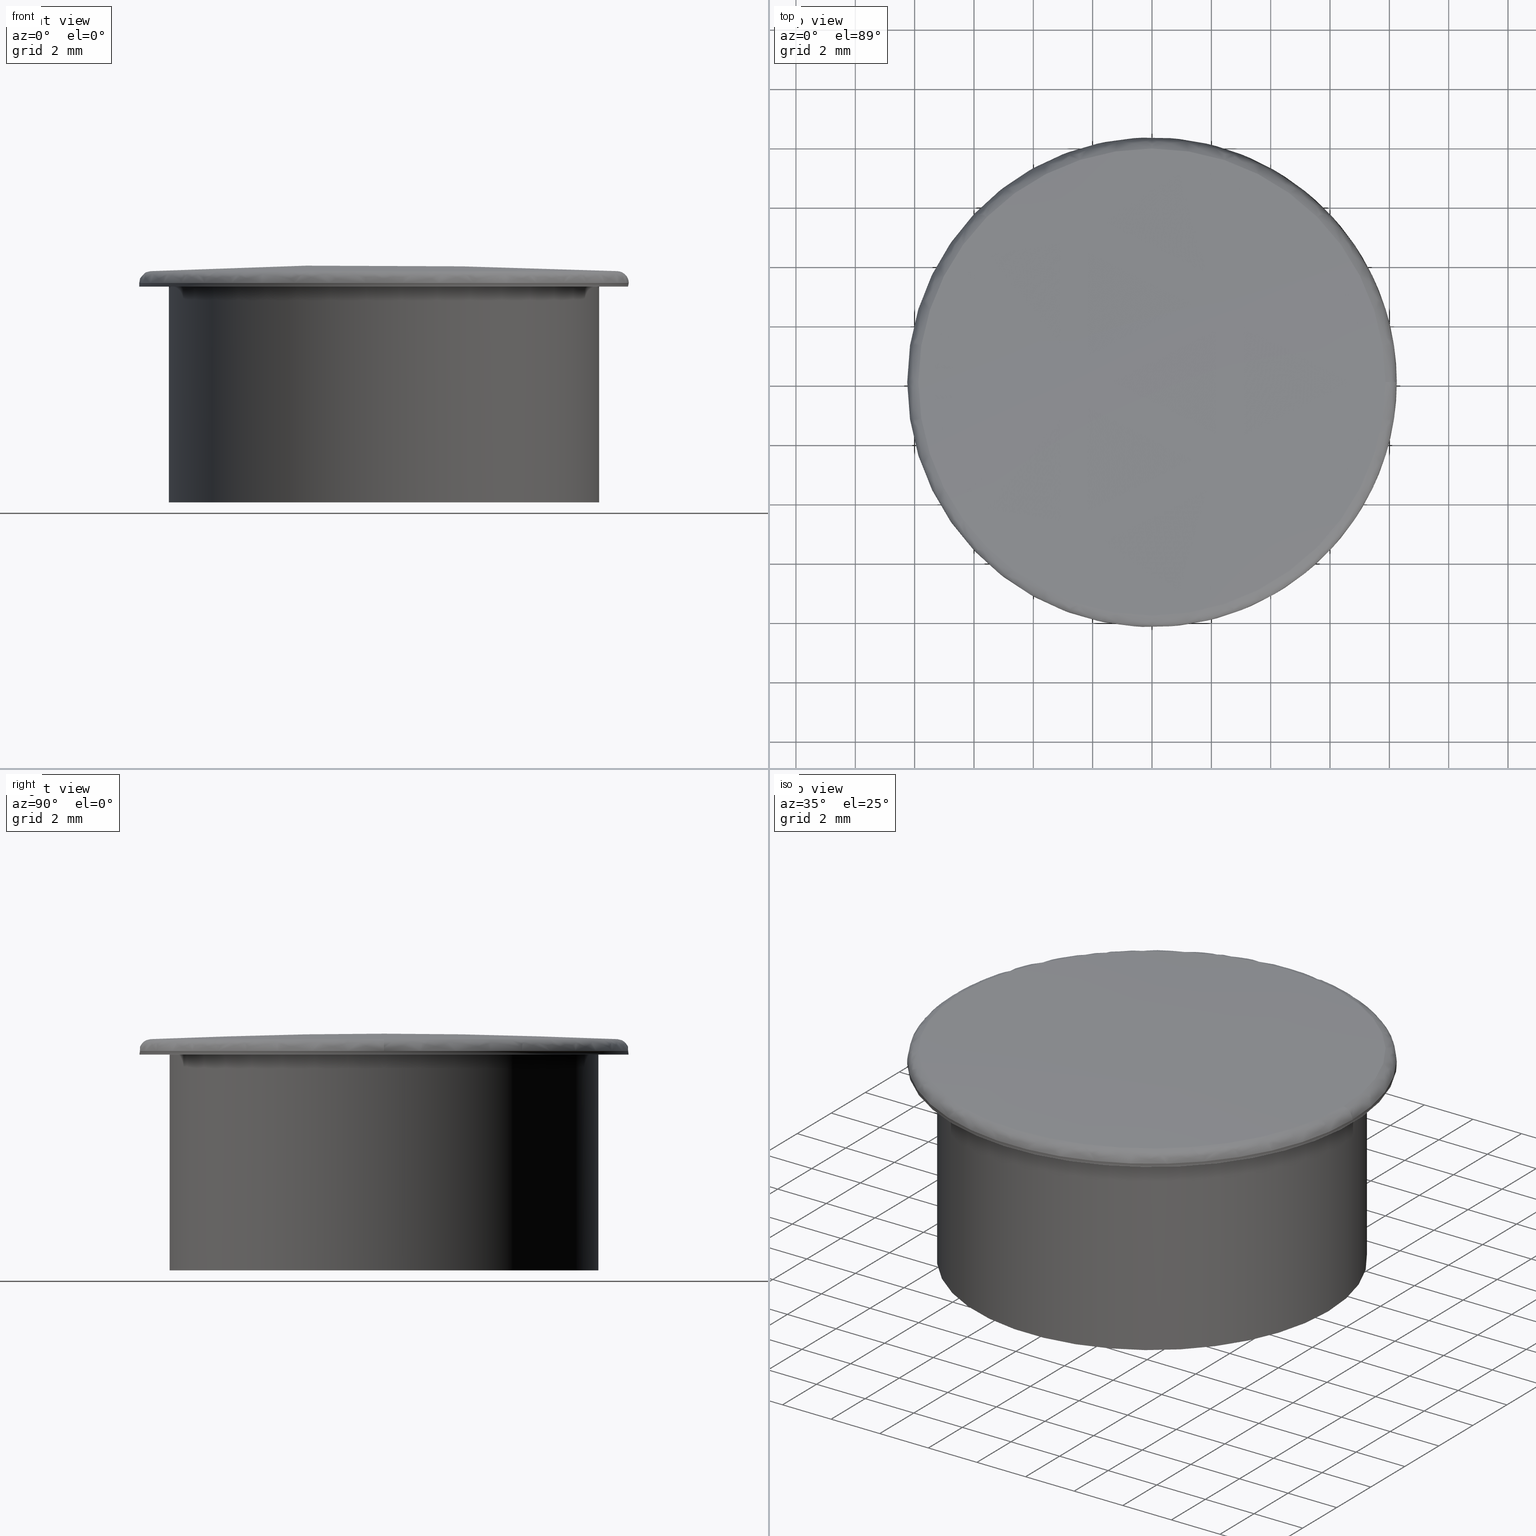
[diagram: canonical four-view strip — front | top / right | iso, engineering-drawing reading convention]
A machine part, canonical four-view strip (front | top / right | iso — engineering-drawing reading convention). The complete STEP part file that produces these views, byte-faithful:
ISO-10303-21;
HEADER;
/* Generated by software containing ST-Developer
 * from STEP Tools, Inc. (www.steptools.com) 
 */

FILE_DESCRIPTION(
/* description */ ('TAPPO COPRIFORO D13,5 GRIGIO'),
/* implementation_level */ '2;1');

FILE_NAME(
/* name */ 
'Q:\\Catalogo\\2_Accessori Dierre\\Per Download Web e catalogo cartace
o\\CATALOGO TAPPI DI CHIUSURA\\PAGINA 88\\CTPTF0000008.stp',
/* time_stamp */ '2018-10-29T09:52:59+01:00',
/* author */ ('fzagni'),
/* organization */ (''),
/* preprocessor_version */ 'ST-DEVELOPER v16.1',
/* originating_system */ 'Autodesk Inventor 2016',
/* authorisation */ '');

FILE_SCHEMA (('AUTOMOTIVE_DESIGN { 1 0 10303 214 3 1 1 }'));
ENDSEC;

DATA;
#10=MECHANICAL_DESIGN_GEOMETRIC_PRESENTATION_REPRESENTATION('',(#13),#422);
#11=SHAPE_REPRESENTATION_RELATIONSHIP('SRR','None',#431,#12);
#12=ADVANCED_BREP_SHAPE_REPRESENTATION('',(#14),#421);
#13=STYLED_ITEM('',(#440),#14);
#14=MANIFOLD_SOLID_BREP('None',#106);
#15=B_SPLINE_SURFACE_WITH_KNOTS('',3,3,((#187,#188,#189,#190,#191,#192,
#193,#194,#195,#196,#197,#198,#199,#200,#201,#202,#203,#204,#205,#206,#207,
#208,#209,#210,#211,#212,#213,#214,#215,#216,#217,#218,#219),(#220,#221,
#222,#223,#224,#225,#226,#227,#228,#229,#230,#231,#232,#233,#234,#235,#236,
#237,#238,#239,#240,#241,#242,#243,#244,#245,#246,#247,#248,#249,#250,#251,
#252),(#253,#254,#255,#256,#257,#258,#259,#260,#261,#262,#263,#264,#265,
#266,#267,#268,#269,#270,#271,#272,#273,#274,#275,#276,#277,#278,#279,#280,
#281,#282,#283,#284,#285),(#286,#287,#288,#289,#290,#291,#292,#293,#294,
#295,#296,#297,#298,#299,#300,#301,#302,#303,#304,#305,#306,#307,#308,#309,
#310,#311,#312,#313,#314,#315,#316,#317,#318),(#319,#320,#321,#322,#323,
#324,#325,#326,#327,#328,#329,#330,#331,#332,#333,#334,#335,#336,#337,#338,
#339,#340,#341,#342,#343,#344,#345,#346,#347,#348,#349,#350,#351),(#352,
#353,#354,#355,#356,#357,#358,#359,#360,#361,#362,#363,#364,#365,#366,#367,
#368,#369,#370,#371,#372,#373,#374,#375,#376,#377,#378,#379,#380,#381,#382,
#383,#384),(#385,#386,#387,#388,#389,#390,#391,#392,#393,#394,#395,#396,
#397,#398,#399,#400,#401,#402,#403,#404,#405,#406,#407,#408,#409,#410,#411,
#412,#413,#414,#415,#416,#417)),.UNSPECIFIED.,.F.,.T.,.F.,(4,1,1,1,4),(4,
1,1,1,1,1,1,1,1,1,1,1,1,1,1,1,1,1,1,1,1,1,1,1,1,1,1,1,1,1,4),(-0.0188840619126992,
0.150904810656852,0.301809621313704,0.452714431970556,0.60361924262741),
(0.,1.58789021152844,3.17578042305687,4.76367063458531,6.35156084611375,
7.93945105764218,9.52734126917062,11.1152314806991,12.7031216922275,14.2910119037559,
15.8789021152844,17.4667923268128,19.0546825383412,20.6425727498697,22.2304629613981,
25.3909511336889,28.5514393059796,30.1393295175081,31.7272197290365,33.315109940565,
34.9030001520934,36.4908903636218,38.0787805751503,39.6666707866787,41.2545609982071,
42.8424512097356,44.430341421264,46.0182316327925,47.6061218443209,49.1940120558493,
50.7819022673778),.UNSPECIFIED.);
#16=SPHERICAL_SURFACE('',#121,149.558881525479);
#17=FACE_BOUND('',#35,.T.);
#18=FACE_BOUND('',#37,.T.);
#19=FACE_BOUND('',#39,.T.);
#20=FACE_BOUND('',#41,.T.);
#21=FACE_BOUND('',#43,.T.);
#22=CYLINDRICAL_SURFACE('',#110,6.75000000000001);
#23=CYLINDRICAL_SURFACE('',#114,7.25000000000001);
#24=CYLINDRICAL_SURFACE('',#118,8.25000000000001);
#25=FACE_OUTER_BOUND('',#33,.T.);
#26=FACE_OUTER_BOUND('',#34,.T.);
#27=FACE_OUTER_BOUND('',#36,.T.);
#28=FACE_OUTER_BOUND('',#38,.T.);
#29=FACE_OUTER_BOUND('',#40,.T.);
#30=FACE_OUTER_BOUND('',#42,.T.);
#31=FACE_OUTER_BOUND('',#44,.T.);
#32=FACE_OUTER_BOUND('',#45,.T.);
#33=EDGE_LOOP('',(#75));
#34=EDGE_LOOP('',(#76));
#35=EDGE_LOOP('',(#77));
#36=EDGE_LOOP('',(#78));
#37=EDGE_LOOP('',(#79));
#38=EDGE_LOOP('',(#80));
#39=EDGE_LOOP('',(#81));
#40=EDGE_LOOP('',(#82));
#41=EDGE_LOOP('',(#83));
#42=EDGE_LOOP('',(#84,#85));
#43=EDGE_LOOP('',(#86));
#44=EDGE_LOOP('',(#87,#88));
#45=EDGE_LOOP('',(#89,#90,#91,#92,#93,#94));
#46=CIRCLE('',#109,6.75000000000001);
#47=CIRCLE('',#111,6.75000000000001);
#48=CIRCLE('',#113,7.25000000000001);
#49=CIRCLE('',#115,7.25000000000001);
#50=CIRCLE('',#117,8.25000000000001);
#51=CIRCLE('',#119,8.25000000000001);
#52=CIRCLE('',#120,8.25000000000001);
#53=CIRCLE('',#122,7.87105137235787);
#54=CIRCLE('',#123,7.87105137235787);
#55=CIRCLE('',#124,0.400000005960451);
#56=VERTEX_POINT('',#163);
#57=VERTEX_POINT('',#166);
#58=VERTEX_POINT('',#169);
#59=VERTEX_POINT('',#172);
#60=VERTEX_POINT('',#175);
#61=VERTEX_POINT('',#178);
#62=VERTEX_POINT('',#179);
#63=VERTEX_POINT('',#183);
#64=VERTEX_POINT('',#184);
#65=EDGE_CURVE('',#56,#56,#46,.T.);
#66=EDGE_CURVE('',#57,#57,#47,.T.);
#67=EDGE_CURVE('',#58,#58,#48,.T.);
#68=EDGE_CURVE('',#59,#59,#49,.T.);
#69=EDGE_CURVE('',#60,#60,#50,.T.);
#70=EDGE_CURVE('',#61,#62,#51,.T.);
#71=EDGE_CURVE('',#62,#61,#52,.T.);
#72=EDGE_CURVE('',#63,#64,#53,.T.);
#73=EDGE_CURVE('',#64,#63,#54,.T.);
#74=EDGE_CURVE('',#64,#61,#55,.T.);
#75=ORIENTED_EDGE('',*,*,#65,.T.);
#76=ORIENTED_EDGE('',*,*,#66,.T.);
#77=ORIENTED_EDGE('',*,*,#65,.F.);
#78=ORIENTED_EDGE('',*,*,#67,.T.);
#79=ORIENTED_EDGE('',*,*,#66,.F.);
#80=ORIENTED_EDGE('',*,*,#68,.T.);
#81=ORIENTED_EDGE('',*,*,#67,.F.);
#82=ORIENTED_EDGE('',*,*,#69,.T.);
#83=ORIENTED_EDGE('',*,*,#68,.F.);
#84=ORIENTED_EDGE('',*,*,#70,.T.);
#85=ORIENTED_EDGE('',*,*,#71,.T.);
#86=ORIENTED_EDGE('',*,*,#69,.F.);
#87=ORIENTED_EDGE('',*,*,#72,.F.);
#88=ORIENTED_EDGE('',*,*,#73,.F.);
#89=ORIENTED_EDGE('',*,*,#74,.T.);
#90=ORIENTED_EDGE('',*,*,#71,.F.);
#91=ORIENTED_EDGE('',*,*,#70,.F.);
#92=ORIENTED_EDGE('',*,*,#74,.F.);
#93=ORIENTED_EDGE('',*,*,#73,.T.);
#94=ORIENTED_EDGE('',*,*,#72,.T.);
#95=PLANE('',#108);
#96=PLANE('',#112);
#97=PLANE('',#116);
#98=ADVANCED_FACE('',(#25),#95,.F.);
#99=ADVANCED_FACE('',(#26,#17),#22,.F.);
#100=ADVANCED_FACE('',(#27,#18),#96,.F.);
#101=ADVANCED_FACE('',(#28,#19),#23,.T.);
#102=ADVANCED_FACE('',(#29,#20),#97,.F.);
#103=ADVANCED_FACE('',(#30,#21),#24,.T.);
#104=ADVANCED_FACE('',(#31),#16,.T.);
#105=ADVANCED_FACE('',(#32),#15,.F.);
#106=CLOSED_SHELL('',(#98,#99,#100,#101,#102,#103,#104,#105));
#107=AXIS2_PLACEMENT_3D('placement',#161,#125,#126);
#108=AXIS2_PLACEMENT_3D('',#162,#127,#128);
#109=AXIS2_PLACEMENT_3D('',#164,#129,#130);
#110=AXIS2_PLACEMENT_3D('',#165,#131,#132);
#111=AXIS2_PLACEMENT_3D('',#167,#133,#134);
#112=AXIS2_PLACEMENT_3D('',#168,#135,#136);
#113=AXIS2_PLACEMENT_3D('',#170,#137,#138);
#114=AXIS2_PLACEMENT_3D('',#171,#139,#140);
#115=AXIS2_PLACEMENT_3D('',#173,#141,#142);
#116=AXIS2_PLACEMENT_3D('',#174,#143,#144);
#117=AXIS2_PLACEMENT_3D('',#176,#145,#146);
#118=AXIS2_PLACEMENT_3D('',#177,#147,#148);
#119=AXIS2_PLACEMENT_3D('',#180,#149,#150);
#120=AXIS2_PLACEMENT_3D('',#181,#151,#152);
#121=AXIS2_PLACEMENT_3D('',#182,#153,#154);
#122=AXIS2_PLACEMENT_3D('',#185,#155,#156);
#123=AXIS2_PLACEMENT_3D('',#186,#157,#158);
#124=AXIS2_PLACEMENT_3D('',#418,#159,#160);
#125=DIRECTION('axis',(0.,0.,1.));
#126=DIRECTION('refdir',(1.,0.,0.));
#127=DIRECTION('center_axis',(0.,0.,1.));
#128=DIRECTION('ref_axis',(1.,0.,0.));
#129=DIRECTION('center_axis',(0.,0.,-1.));
#130=DIRECTION('ref_axis',(1.,0.,0.));
#131=DIRECTION('center_axis',(0.,0.,-1.));
#132=DIRECTION('ref_axis',(1.,0.,0.));
#133=DIRECTION('center_axis',(0.,0.,-1.));
#134=DIRECTION('ref_axis',(1.,0.,0.));
#135=DIRECTION('center_axis',(0.,0.,1.));
#136=DIRECTION('ref_axis',(1.,0.,0.));
#137=DIRECTION('center_axis',(0.,0.,-1.));
#138=DIRECTION('ref_axis',(1.,0.,0.));
#139=DIRECTION('center_axis',(0.,0.,-1.));
#140=DIRECTION('ref_axis',(1.,0.,0.));
#141=DIRECTION('center_axis',(0.,0.,-1.));
#142=DIRECTION('ref_axis',(1.,0.,0.));
#143=DIRECTION('center_axis',(0.,0.,1.));
#144=DIRECTION('ref_axis',(1.,0.,0.));
#145=DIRECTION('center_axis',(0.,0.,-1.));
#146=DIRECTION('ref_axis',(1.,0.,0.));
#147=DIRECTION('center_axis',(0.,0.,-1.));
#148=DIRECTION('ref_axis',(1.,0.,0.));
#149=DIRECTION('center_axis',(0.,0.,-1.));
#150=DIRECTION('ref_axis',(1.,0.,0.));
#151=DIRECTION('center_axis',(0.,0.,-1.));
#152=DIRECTION('ref_axis',(1.,0.,0.));
#153=DIRECTION('center_axis',(1.,-6.12323399573676E-17,0.));
#154=DIRECTION('ref_axis',(0.,-1.,0.));
#155=DIRECTION('center_axis',(0.,0.,-1.));
#156=DIRECTION('ref_axis',(1.,0.,0.));
#157=DIRECTION('center_axis',(0.,0.,-1.));
#158=DIRECTION('ref_axis',(1.,0.,0.));
#159=DIRECTION('center_axis',(0.,1.,0.));
#160=DIRECTION('ref_axis',(0.052628445011574,0.,0.998614163115897));
#161=CARTESIAN_POINT('',(0.,0.,0.));
#162=CARTESIAN_POINT('Origin',(-13.5,13.5,0.));
#163=CARTESIAN_POINT('',(-6.75000000000001,0.,0.));
#164=CARTESIAN_POINT('Origin',(0.,0.,0.));
#165=CARTESIAN_POINT('Origin',(0.,0.,0.));
#166=CARTESIAN_POINT('',(-6.75000000000001,0.,-7.27228247973548));
#167=CARTESIAN_POINT('Origin',(0.,0.,-7.27228247973548));
#168=CARTESIAN_POINT('Origin',(-14.5,14.5,-7.27228247973548));
#169=CARTESIAN_POINT('',(-7.25000000000001,0.,-7.27228247973548));
#170=CARTESIAN_POINT('Origin',(0.,0.,-7.27228247973548));
#171=CARTESIAN_POINT('Origin',(0.,0.,-7.27228247973548));
#172=CARTESIAN_POINT('',(-7.25000000000001,0.,0.));
#173=CARTESIAN_POINT('Origin',(0.,0.,0.));
#174=CARTESIAN_POINT('Origin',(-16.5,16.5,0.));
#175=CARTESIAN_POINT('',(-8.25000000000001,0.,0.));
#176=CARTESIAN_POINT('Origin',(0.,0.,0.));
#177=CARTESIAN_POINT('Origin',(0.,0.,0.));
#178=CARTESIAN_POINT('',(8.25000000000001,0.,0.121007634702664));
#179=CARTESIAN_POINT('',(-8.25000000000001,0.,0.121007634702664));
#180=CARTESIAN_POINT('Origin',(0.,0.,0.121007634702664));
#181=CARTESIAN_POINT('Origin',(0.,0.,0.121007634702664));
#182=CARTESIAN_POINT('Origin',(3.88578058618805E-15,-2.99760216648792E-14,
-148.831164005215));
#183=CARTESIAN_POINT('',(-7.87105137235787,0.,0.520453305901242));
#184=CARTESIAN_POINT('',(7.87105137235787,0.,0.520453305901242));
#185=CARTESIAN_POINT('Origin',(0.,0.,0.520453305901242));
#186=CARTESIAN_POINT('Origin',(0.,0.,0.520453305901242));
#187=CARTESIAN_POINT('Ctrl Pts',(7.85220185876936,0.,0.520988402301477));
#188=CARTESIAN_POINT('Ctrl Pts',(7.85220185876936,-0.513100247658022,0.520988402301477));
#189=CARTESIAN_POINT('Ctrl Pts',(7.75096822887579,-1.54214442037257,0.520988402301477));
#190=CARTESIAN_POINT('Ctrl Pts',(7.30125242179592,-3.02417569218672,0.520988402301477));
#191=CARTESIAN_POINT('Ctrl Pts',(6.57095357872507,-4.39059816450492,0.520988402301477));
#192=CARTESIAN_POINT('Ctrl Pts',(5.58813667469752,-5.58812934815428,0.520988402301477));
#193=CARTESIAN_POINT('Ctrl Pts',(4.39057081197342,-6.57095553236653,0.520988402301479));
#194=CARTESIAN_POINT('Ctrl Pts',(3.02427777576949,-7.30125193377333,0.520988402301477));
#195=CARTESIAN_POINT('Ctrl Pts',(1.541763438573,-7.7509682273247,0.520988402301477));
#196=CARTESIAN_POINT('Ctrl Pts',(4.91625940703668E-9,-7.90281916794309,
0.520988402301478));
#197=CARTESIAN_POINT('Ctrl Pts',(-1.54176345823802,-7.7509662535191,0.520988402301477));
#198=CARTESIAN_POINT('Ctrl Pts',(-3.0242777069419,-7.30125982899573,0.520988402301477));
#199=CARTESIAN_POINT('Ctrl Pts',(-4.39057106761873,-6.57092592528251,0.520988402301477));
#200=CARTESIAN_POINT('Ctrl Pts',(-5.58813572094385,-5.58823988126793,0.520988402301477));
#201=CARTESIAN_POINT('Ctrl Pts',(-6.57095713809442,-4.39018563913432,0.520988402301477));
#202=CARTESIAN_POINT('Ctrl Pts',(-7.54232213310724,-2.57527199957617,0.520988402301477));
#203=CARTESIAN_POINT('Ctrl Pts',(-8.05845568452284,-5.26801483426718E-17,
0.520988402301477));
#204=CARTESIAN_POINT('Ctrl Pts',(-7.54232213310725,2.57527199957617,0.520988402301477));
#205=CARTESIAN_POINT('Ctrl Pts',(-6.57095713809442,4.39018563913432,0.520988402301477));
#206=CARTESIAN_POINT('Ctrl Pts',(-5.58813572094385,5.58823988126793,0.520988402301477));
#207=CARTESIAN_POINT('Ctrl Pts',(-4.39057106761873,6.5709259252825,0.520988402301477));
#208=CARTESIAN_POINT('Ctrl Pts',(-3.02427770694191,7.30125982899573,0.520988402301477));
#209=CARTESIAN_POINT('Ctrl Pts',(-1.54176345823802,7.7509662535191,0.520988402301477));
#210=CARTESIAN_POINT('Ctrl Pts',(4.91625395739515E-9,7.90281916794309,0.520988402301477));
#211=CARTESIAN_POINT('Ctrl Pts',(1.541763438573,7.7509682273247,0.520988402301475));
#212=CARTESIAN_POINT('Ctrl Pts',(3.02427777576949,7.30125193377333,0.520988402301477));
#213=CARTESIAN_POINT('Ctrl Pts',(4.39057081197342,6.57095553236653,0.520988402301477));
#214=CARTESIAN_POINT('Ctrl Pts',(5.58813667469752,5.58812934815428,0.520988402301477));
#215=CARTESIAN_POINT('Ctrl Pts',(6.57095357872506,4.39059816450492,0.520988402301477));
#216=CARTESIAN_POINT('Ctrl Pts',(7.30125242179593,3.02417569218672,0.520988402301477));
#217=CARTESIAN_POINT('Ctrl Pts',(7.75096822887579,1.54214442037256,0.520988402301477));
#218=CARTESIAN_POINT('Ctrl Pts',(7.85220185876936,0.513100247658025,0.520988402301477));
#219=CARTESIAN_POINT('Ctrl Pts',(7.85220185876936,1.92323531769473E-15,
0.520988402301477));
#220=CARTESIAN_POINT('Ctrl Pts',(7.90864476349817,0.,0.520764844033896));
#221=CARTESIAN_POINT('Ctrl Pts',(7.90864476349817,-0.516788495733629,0.520764844033896));
#222=CARTESIAN_POINT('Ctrl Pts',(7.80668344979945,-1.55322960541527,0.520764844033896));
#223=CARTESIAN_POINT('Ctrl Pts',(7.35373501231723,-3.04591395917825,0.520764844033897));
#224=CARTESIAN_POINT('Ctrl Pts',(6.61818666232278,-4.42215849858177,0.520764844033896));
#225=CARTESIAN_POINT('Ctrl Pts',(5.6283051104579,-5.62829773125027,0.520764844033897));
#226=CARTESIAN_POINT('Ctrl Pts',(4.42213094943582,-6.61818863000734,0.520764844033896));
#227=CARTESIAN_POINT('Ctrl Pts',(3.04601677655442,-7.35373452078665,0.520764844033897));
#228=CARTESIAN_POINT('Ctrl Pts',(1.55284588505653,-7.80668344823721,0.520764844033897));
#229=CARTESIAN_POINT('Ctrl Pts',(4.95159799402939E-9,-7.95962591812705,
0.520764844033897));
#230=CARTESIAN_POINT('Ctrl Pts',(-1.55284590486291,-7.80668146024357,0.520764844033897));
#231=CARTESIAN_POINT('Ctrl Pts',(-3.04601670723209,-7.3537424727612,0.520764844033897));
#232=CARTESIAN_POINT('Ctrl Pts',(-4.42213120691875,-6.61815881010278,0.520764844033896));
#233=CARTESIAN_POINT('Ctrl Pts',(-5.62830414984849,-5.62840905889394,0.520764844033897));
#234=CARTESIAN_POINT('Ctrl Pts',(-6.61819024727746,-4.42174300791168,0.520764844033896));
#235=CARTESIAN_POINT('Ctrl Pts',(-7.59653757194209,-2.59378347377631,0.520764844033897));
#236=CARTESIAN_POINT('Ctrl Pts',(-8.1163811753143,-2.80515068387422E-16,
0.520764844033896));
#237=CARTESIAN_POINT('Ctrl Pts',(-7.59653757194209,2.5937834737763,0.520764844033896));
#238=CARTESIAN_POINT('Ctrl Pts',(-6.61819024727746,4.42174300791168,0.520764844033896));
#239=CARTESIAN_POINT('Ctrl Pts',(-5.62830414984849,5.62840905889394,0.520764844033896));
#240=CARTESIAN_POINT('Ctrl Pts',(-4.42213120691876,6.61815881010278,0.520764844033895));
#241=CARTESIAN_POINT('Ctrl Pts',(-3.0460167072321,7.35374247276119,0.520764844033896));
#242=CARTESIAN_POINT('Ctrl Pts',(-1.55284590486292,7.80668146024357,0.520764844033896));
#243=CARTESIAN_POINT('Ctrl Pts',(4.95159412569318E-9,7.95962591812705,0.520764844033896));
#244=CARTESIAN_POINT('Ctrl Pts',(1.55284588505653,7.80668344823721,0.520764844033896));
#245=CARTESIAN_POINT('Ctrl Pts',(3.04601677655442,7.35373452078665,0.520764844033896));
#246=CARTESIAN_POINT('Ctrl Pts',(4.42213094943582,6.61818863000733,0.520764844033896));
#247=CARTESIAN_POINT('Ctrl Pts',(5.6283051104579,5.62829773125028,0.520764844033896));
#248=CARTESIAN_POINT('Ctrl Pts',(6.61818666232278,4.42215849858177,0.520764844033896));
#249=CARTESIAN_POINT('Ctrl Pts',(7.35373501231723,3.04591395917825,0.520764844033896));
#250=CARTESIAN_POINT('Ctrl Pts',(7.80668344979945,1.55322960541527,0.520764844033896));
#251=CARTESIAN_POINT('Ctrl Pts',(7.90864476349817,0.516788495733632,0.520764844033896));
#252=CARTESIAN_POINT('Ctrl Pts',(7.90864476349817,1.93705943676852E-15,
0.520764844033896));
#253=CARTESIAN_POINT('Ctrl Pts',(8.01651943577887,0.,0.496814974616653));
#254=CARTESIAN_POINT('Ctrl Pts',(8.01651943577887,-0.523837540327592,0.496814974616653));
#255=CARTESIAN_POINT('Ctrl Pts',(7.91316735999265,-1.57441580604401,0.496814974616653));
#256=CARTESIAN_POINT('Ctrl Pts',(7.45404066242737,-3.0874605174025,0.496814974616653));
#257=CARTESIAN_POINT('Ctrl Pts',(6.70845936246804,-4.48247716417788,0.496814974616653));
#258=CARTESIAN_POINT('Ctrl Pts',(5.70507573139776,-5.70506825153703,0.496814974616653));
#259=CARTESIAN_POINT('Ctrl Pts',(4.48244923925894,-6.708461356992,0.496814974616653));
#260=CARTESIAN_POINT('Ctrl Pts',(3.08756473721753,-7.45404016419227,0.496814974616653));
#261=CARTESIAN_POINT('Ctrl Pts',(1.57402685170281,-7.91316735840911,0.496814974616652));
#262=CARTESIAN_POINT('Ctrl Pts',(5.01913869676307E-9,-8.06819597824128,
0.496814974616653));
#263=CARTESIAN_POINT('Ctrl Pts',(-1.57402687177936,-7.91316534329904,0.496814974616652));
#264=CARTESIAN_POINT('Ctrl Pts',(-3.08756466694964,-7.45404822463251,0.496814974616653));
#265=CARTESIAN_POINT('Ctrl Pts',(-4.48244950025396,-6.70843113034109,0.496814974616653));
#266=CARTESIAN_POINT('Ctrl Pts',(-5.70507475768554,-5.70518109770041,0.496814974616653));
#267=CARTESIAN_POINT('Ctrl Pts',(-6.70846299632185,-4.48205600617525,0.496814974616653));
#268=CARTESIAN_POINT('Ctrl Pts',(-7.70015507222779,-2.62916292886223,0.496814974616653));
#269=CARTESIAN_POINT('Ctrl Pts',(-8.22708939215486,2.40568877900879E-16,
0.496814974616653));
#270=CARTESIAN_POINT('Ctrl Pts',(-7.7001550722278,2.62916292886222,0.496814974616653));
#271=CARTESIAN_POINT('Ctrl Pts',(-6.70846299632185,4.48205600617525,0.496814974616653));
#272=CARTESIAN_POINT('Ctrl Pts',(-5.70507475768554,5.70518109770041,0.496814974616653));
#273=CARTESIAN_POINT('Ctrl Pts',(-4.48244950025397,6.70843113034109,0.496814974616651));
#274=CARTESIAN_POINT('Ctrl Pts',(-3.08756466694964,7.45404822463251,0.496814974616653));
#275=CARTESIAN_POINT('Ctrl Pts',(-1.57402687177936,7.91316534329904,0.496814974616651));
#276=CARTESIAN_POINT('Ctrl Pts',(5.0191336550501E-9,8.06819597824128,0.496814974616651));
#277=CARTESIAN_POINT('Ctrl Pts',(1.57402685170281,7.9131673584091,0.496814974616653));
#278=CARTESIAN_POINT('Ctrl Pts',(3.08756473721753,7.45404016419227,0.496814974616651));
#279=CARTESIAN_POINT('Ctrl Pts',(4.48244923925894,6.70846135699199,0.496814974616651));
#280=CARTESIAN_POINT('Ctrl Pts',(5.70507573139775,5.70506825153703,0.496814974616653));
#281=CARTESIAN_POINT('Ctrl Pts',(6.70845936246803,4.48247716417789,0.496814974616651));
#282=CARTESIAN_POINT('Ctrl Pts',(7.45404066242737,3.08746051740249,0.496814974616653));
#283=CARTESIAN_POINT('Ctrl Pts',(7.91316735999265,1.57441580604401,0.496814974616653));
#284=CARTESIAN_POINT('Ctrl Pts',(8.01651943577887,0.523837540327595,0.496814974616653));
#285=CARTESIAN_POINT('Ctrl Pts',(8.01651943577887,1.96348132739283E-15,
0.496814974616653));
#286=CARTESIAN_POINT('Ctrl Pts',(8.14720384597407,0.,0.402960851225476));
#287=CARTESIAN_POINT('Ctrl Pts',(8.14720384597407,-0.532377081776251,0.402960851225476));
#288=CARTESIAN_POINT('Ctrl Pts',(8.04216693611806,-1.60008175779067,0.402960851225477));
#289=CARTESIAN_POINT('Ctrl Pts',(7.57555560608143,-3.13779195612101,0.402960851225476));
#290=CARTESIAN_POINT('Ctrl Pts',(6.81781992251231,-4.55555000945778,0.402960851225477));
#291=CARTESIAN_POINT('Ctrl Pts',(5.79807924284052,-5.79807164104393,0.402960851225477));
#292=CARTESIAN_POINT('Ctrl Pts',(4.55552162930991,-6.81782194955078,0.402960851225477));
#293=CARTESIAN_POINT('Ctrl Pts',(3.13789787491591,-7.57555509972415,0.402960851225477));
#294=CARTESIAN_POINT('Ctrl Pts',(1.59968646275896,-8.0421669345087,0.402960851225478));
#295=CARTESIAN_POINT('Ctrl Pts',(5.100959E-9,-8.19972281369679,0.402960851225476));
#296=CARTESIAN_POINT('Ctrl Pts',(-1.59968648316279,-8.04216488654853,0.402960851225478));
#297=CARTESIAN_POINT('Ctrl Pts',(-3.13789780350251,-7.5755632915648,0.402960851225477));
#298=CARTESIAN_POINT('Ctrl Pts',(-4.55552189455964,-6.81779123014836,0.402960851225477));
#299=CARTESIAN_POINT('Ctrl Pts',(-5.79807825325496,-5.79818632681295,0.402960851225477));
#300=CARTESIAN_POINT('Ctrl Pts',(-6.81782361560479,-4.55512198578412,0.402960851225476));
#301=CARTESIAN_POINT('Ctrl Pts',(-7.82568214567745,-2.67202325115272,0.402960851225477));
#302=CARTESIAN_POINT('Ctrl Pts',(-8.36120649041053,-2.220446E-16,0.402960851225476));
#303=CARTESIAN_POINT('Ctrl Pts',(-7.82568214567745,2.67202325115272,0.402960851225476));
#304=CARTESIAN_POINT('Ctrl Pts',(-6.8178236156048,4.55512198578412,0.402960851225476));
#305=CARTESIAN_POINT('Ctrl Pts',(-5.79807825325496,5.79818632681296,0.402960851225476));
#306=CARTESIAN_POINT('Ctrl Pts',(-4.55552189455965,6.81779123014835,0.402960851225476));
#307=CARTESIAN_POINT('Ctrl Pts',(-3.13789780350252,7.5755632915648,0.402960851225476));
#308=CARTESIAN_POINT('Ctrl Pts',(-1.59968648316279,8.04216488654853,0.402960851225476));
#309=CARTESIAN_POINT('Ctrl Pts',(5.100955E-9,8.19972281369679,0.402960851225476));
#310=CARTESIAN_POINT('Ctrl Pts',(1.59968646275896,8.04216693450869,0.402960851225476));
#311=CARTESIAN_POINT('Ctrl Pts',(3.1378978749159,7.57555509972415,0.402960851225476));
#312=CARTESIAN_POINT('Ctrl Pts',(4.55552162930991,6.81782194955077,0.402960851225476));
#313=CARTESIAN_POINT('Ctrl Pts',(5.79807924284052,5.79807164104394,0.402960851225476));
#314=CARTESIAN_POINT('Ctrl Pts',(6.8178199225123,4.55555000945778,0.402960851225476));
#315=CARTESIAN_POINT('Ctrl Pts',(7.57555560608143,3.13779195612101,0.402960851225477));
#316=CARTESIAN_POINT('Ctrl Pts',(8.04216693611805,1.60008175779067,0.402960851225476));
#317=CARTESIAN_POINT('Ctrl Pts',(8.14720384597407,0.532377081776253,0.402960851225476));
#318=CARTESIAN_POINT('Ctrl Pts',(8.14720384597407,1.995489E-15,0.402960851225476));
#319=CARTESIAN_POINT('Ctrl Pts',(8.23057262642162,0.,0.272941638780798));
#320=CARTESIAN_POINT('Ctrl Pts',(8.23057262642162,-0.537824794744405,0.272941638780798));
#321=CARTESIAN_POINT('Ctrl Pts',(8.12446089393415,-1.61645508872546,0.272941638780798));
#322=CARTESIAN_POINT('Ctrl Pts',(7.65307481930251,-3.16990038173862,0.272941638780798));
#323=CARTESIAN_POINT('Ctrl Pts',(6.88758537124743,-4.60216608237512,0.272941638780798));
#324=CARTESIAN_POINT('Ctrl Pts',(5.85740988002014,-5.85740220043582,0.272941638780798));
#325=CARTESIAN_POINT('Ctrl Pts',(4.60213741181862,-6.88758741902818,0.272941638780798));
#326=CARTESIAN_POINT('Ctrl Pts',(3.1700073843803,-7.65307430776377,0.272941638780799));
#327=CARTESIAN_POINT('Ctrl Pts',(1.61605574871522,-8.12446089230832,0.272941638780799));
#328=CARTESIAN_POINT('Ctrl Pts',(5.153157E-9,-8.2836290107074,0.272941638780798));
#329=CARTESIAN_POINT('Ctrl Pts',(-1.61605576932784,-8.12445882339178,0.272941638780799));
#330=CARTESIAN_POINT('Ctrl Pts',(-3.17000731223615,-7.65308258342996,0.272941638780799));
#331=CARTESIAN_POINT('Ctrl Pts',(-4.6021376797826,-6.88755638528,0.272941638780798));
#332=CARTESIAN_POINT('Ctrl Pts',(-5.85740888030834,-5.8575180597624,0.272941638780798));
#333=CARTESIAN_POINT('Ctrl Pts',(-6.88758910213062,-4.60173367881698,0.272941638780798));
#334=CARTESIAN_POINT('Ctrl Pts',(-7.905760855992,-2.69936555459664,0.272941638780799));
#335=CARTESIAN_POINT('Ctrl Pts',(-8.44676511903379,0.,0.272941638780797));
#336=CARTESIAN_POINT('Ctrl Pts',(-7.905760855992,2.69936555459663,0.272941638780798));
#337=CARTESIAN_POINT('Ctrl Pts',(-6.88758910213063,4.60173367881699,0.272941638780798));
#338=CARTESIAN_POINT('Ctrl Pts',(-5.85740888030834,5.85751805976241,0.272941638780798));
#339=CARTESIAN_POINT('Ctrl Pts',(-4.60213767978261,6.88755638527999,0.272941638780797));
#340=CARTESIAN_POINT('Ctrl Pts',(-3.17000731223616,7.65308258342995,0.272941638780798));
#341=CARTESIAN_POINT('Ctrl Pts',(-1.61605576932784,8.12445882339178,0.272941638780797));
#342=CARTESIAN_POINT('Ctrl Pts',(5.153152E-9,8.2836290107074,0.272941638780797));
#343=CARTESIAN_POINT('Ctrl Pts',(1.61605574871522,8.12446089230832,0.272941638780798));
#344=CARTESIAN_POINT('Ctrl Pts',(3.1700073843803,7.65307430776377,0.272941638780798));
#345=CARTESIAN_POINT('Ctrl Pts',(4.60213741181862,6.88758741902819,0.272941638780798));
#346=CARTESIAN_POINT('Ctrl Pts',(5.85740988002014,5.85740220043582,0.272941638780798));
#347=CARTESIAN_POINT('Ctrl Pts',(6.88758537124742,4.60216608237512,0.272941638780798));
#348=CARTESIAN_POINT('Ctrl Pts',(7.65307481930251,3.16990038173862,0.272941638780798));
#349=CARTESIAN_POINT('Ctrl Pts',(8.12446089393415,1.61645508872546,0.272941638780798));
#350=CARTESIAN_POINT('Ctrl Pts',(8.23057262642162,0.537824794744408,0.272941638780798));
#351=CARTESIAN_POINT('Ctrl Pts',(8.23057262642162,2.015909E-15,0.272941638780798));
#352=CARTESIAN_POINT('Ctrl Pts',(8.25000000000001,0.,0.171309238254949));
#353=CARTESIAN_POINT('Ctrl Pts',(8.25000000000001,-0.539094271812584,0.171309238254949));
#354=CARTESIAN_POINT('Ctrl Pts',(8.14363780228229,-1.62027055555951,0.171309238254949));
#355=CARTESIAN_POINT('Ctrl Pts',(7.67113907197196,-3.17738258762119,0.171309238254949));
#356=CARTESIAN_POINT('Ctrl Pts',(6.90384276913865,-4.6130289960277,0.171309238254949));
#357=CARTESIAN_POINT('Ctrl Pts',(5.87123566044951,-5.87122796273837,0.171309238254949));
#358=CARTESIAN_POINT('Ctrl Pts',(4.61300025779746,-6.90384482175297,0.171309238254949));
#359=CARTESIAN_POINT('Ctrl Pts',(3.177489842831,-7.67113855922579,0.171309238254949));
#360=CARTESIAN_POINT('Ctrl Pts',(1.61987027295051,-8.14363780065262,0.171309238254949));
#361=CARTESIAN_POINT('Ctrl Pts',(5.16532E-9,-8.30318161812371,0.171309238254949));
#362=CARTESIAN_POINT('Ctrl Pts',(-1.61987029361178,-8.14363572685262,0.171309238254949));
#363=CARTESIAN_POINT('Ctrl Pts',(-3.17748977051656,-7.67114685442579,0.171309238254949));
#364=CARTESIAN_POINT('Ctrl Pts',(-4.61300052639394,-6.90381371475298,0.171309238254949));
#365=CARTESIAN_POINT('Ctrl Pts',(-5.871234658378,-5.87134409553832,0.171309238254949));
#366=CARTESIAN_POINT('Ctrl Pts',(-6.90384650882819,-4.61259557182788,0.171309238254949));
#367=CARTESIAN_POINT('Ctrl Pts',(-7.92442154663189,-2.70573711407787,0.171309238254949));
#368=CARTESIAN_POINT('Ctrl Pts',(-8.46670279153177,-1.110223E-16,0.171309238254949));
#369=CARTESIAN_POINT('Ctrl Pts',(-7.92442154663189,2.70573711407786,0.171309238254949));
#370=CARTESIAN_POINT('Ctrl Pts',(-6.90384650882819,4.61259557182789,0.171309238254949));
#371=CARTESIAN_POINT('Ctrl Pts',(-5.871234658378,5.87134409553832,0.171309238254948));
#372=CARTESIAN_POINT('Ctrl Pts',(-4.61300052639395,6.90381371475298,0.171309238254948));
#373=CARTESIAN_POINT('Ctrl Pts',(-3.17748977051656,7.67114685442579,0.171309238254948));
#374=CARTESIAN_POINT('Ctrl Pts',(-1.61987029361178,8.14363572685262,0.171309238254948));
#375=CARTESIAN_POINT('Ctrl Pts',(5.165316E-9,8.30318161812371,0.171309238254948));
#376=CARTESIAN_POINT('Ctrl Pts',(1.61987027295051,8.14363780065262,0.171309238254948));
#377=CARTESIAN_POINT('Ctrl Pts',(3.177489842831,7.67113855922579,0.171309238254948));
#378=CARTESIAN_POINT('Ctrl Pts',(4.61300025779746,6.90384482175297,0.171309238254948));
#379=CARTESIAN_POINT('Ctrl Pts',(5.87123566044951,5.87122796273837,0.171309238254948));
#380=CARTESIAN_POINT('Ctrl Pts',(6.90384276913864,4.6130289960277,0.171309238254949));
#381=CARTESIAN_POINT('Ctrl Pts',(7.67113907197196,3.17738258762119,0.171309238254949));
#382=CARTESIAN_POINT('Ctrl Pts',(8.14363780228229,1.62027055555951,0.171309238254949));
#383=CARTESIAN_POINT('Ctrl Pts',(8.25000000000001,0.539094271812587,0.171309238254949));
#384=CARTESIAN_POINT('Ctrl Pts',(8.25000000000001,2.020667E-15,0.171309238254949));
#385=CARTESIAN_POINT('Ctrl Pts',(8.25000000000001,0.,0.121007634702664));
#386=CARTESIAN_POINT('Ctrl Pts',(8.25000000000001,-0.539094271812584,0.121007634702664));
#387=CARTESIAN_POINT('Ctrl Pts',(8.14363780228228,-1.62027055555951,0.121007634702664));
#388=CARTESIAN_POINT('Ctrl Pts',(7.67113907197196,-3.17738258762119,0.121007634702664));
#389=CARTESIAN_POINT('Ctrl Pts',(6.90384276913864,-4.6130289960277,0.121007634702665));
#390=CARTESIAN_POINT('Ctrl Pts',(5.87123566044951,-5.87122796273837,0.121007634702665));
#391=CARTESIAN_POINT('Ctrl Pts',(4.61300025779746,-6.90384482175297,0.121007634702665));
#392=CARTESIAN_POINT('Ctrl Pts',(3.177489842831,-7.67113855922579,0.121007634702665));
#393=CARTESIAN_POINT('Ctrl Pts',(1.61987027295051,-8.14363780065262,0.121007634702665));
#394=CARTESIAN_POINT('Ctrl Pts',(5.16532E-9,-8.30318161812371,0.121007634702665));
#395=CARTESIAN_POINT('Ctrl Pts',(-1.61987029361178,-8.14363572685262,0.121007634702665));
#396=CARTESIAN_POINT('Ctrl Pts',(-3.17748977051656,-7.67114685442579,0.121007634702665));
#397=CARTESIAN_POINT('Ctrl Pts',(-4.61300052639394,-6.90381371475298,0.121007634702665));
#398=CARTESIAN_POINT('Ctrl Pts',(-5.871234658378,-5.87134409553832,0.121007634702665));
#399=CARTESIAN_POINT('Ctrl Pts',(-6.90384650882818,-4.61259557182788,0.121007634702665));
#400=CARTESIAN_POINT('Ctrl Pts',(-7.92442154663188,-2.70573711407787,0.121007634702665));
#401=CARTESIAN_POINT('Ctrl Pts',(-8.46670279153176,2.220446E-16,0.121007634702664));
#402=CARTESIAN_POINT('Ctrl Pts',(-7.92442154663189,2.70573711407786,0.121007634702664));
#403=CARTESIAN_POINT('Ctrl Pts',(-6.90384650882819,4.61259557182788,0.121007634702664));
#404=CARTESIAN_POINT('Ctrl Pts',(-5.871234658378,5.87134409553832,0.121007634702664));
#405=CARTESIAN_POINT('Ctrl Pts',(-4.61300052639395,6.90381371475298,0.121007634702664));
#406=CARTESIAN_POINT('Ctrl Pts',(-3.17748977051656,7.67114685442579,0.121007634702664));
#407=CARTESIAN_POINT('Ctrl Pts',(-1.61987029361178,8.14363572685261,0.121007634702664));
#408=CARTESIAN_POINT('Ctrl Pts',(5.165316E-9,8.30318161812371,0.121007634702664));
#409=CARTESIAN_POINT('Ctrl Pts',(1.61987027295051,8.14363780065262,0.121007634702664));
#410=CARTESIAN_POINT('Ctrl Pts',(3.177489842831,7.67113855922579,0.121007634702664));
#411=CARTESIAN_POINT('Ctrl Pts',(4.61300025779746,6.90384482175297,0.121007634702664));
#412=CARTESIAN_POINT('Ctrl Pts',(5.87123566044951,5.87122796273837,0.121007634702664));
#413=CARTESIAN_POINT('Ctrl Pts',(6.90384276913863,4.6130289960277,0.121007634702664));
#414=CARTESIAN_POINT('Ctrl Pts',(7.67113907197196,3.17738258762119,0.121007634702664));
#415=CARTESIAN_POINT('Ctrl Pts',(8.14363780228228,1.62027055555951,0.121007634702664));
#416=CARTESIAN_POINT('Ctrl Pts',(8.25000000000001,0.539094271812586,0.121007634702664));
#417=CARTESIAN_POINT('Ctrl Pts',(8.25000000000001,2.020667E-15,0.121007634702664));
#418=CARTESIAN_POINT('Origin',(7.84999999403955,-1.540744E-33,0.121007634702693));
#419=UNCERTAINTY_MEASURE_WITH_UNIT(LENGTH_MEASURE(0.01),#423,
'DISTANCE_ACCURACY_VALUE',
'Maximum model space distance between geometric entities at asserted c
onnectivities');
#420=UNCERTAINTY_MEASURE_WITH_UNIT(LENGTH_MEASURE(1.E-6),#423,
'DISTANCE_ACCURACY_VALUE',
'Maximum model space distance between geometric entities at asserted c
onnectivities');
#421=(
GEOMETRIC_REPRESENTATION_CONTEXT(3)
GLOBAL_UNCERTAINTY_ASSIGNED_CONTEXT((#419))
GLOBAL_UNIT_ASSIGNED_CONTEXT((#423,#426,#424))
REPRESENTATION_CONTEXT('','3D')
);
#422=(
GEOMETRIC_REPRESENTATION_CONTEXT(3)
GLOBAL_UNCERTAINTY_ASSIGNED_CONTEXT((#420))
GLOBAL_UNIT_ASSIGNED_CONTEXT((#423,#426,#424))
REPRESENTATION_CONTEXT('','3D')
);
#423=(
LENGTH_UNIT()
NAMED_UNIT(*)
SI_UNIT(.MILLI.,.METRE.)
);
#424=(
NAMED_UNIT(*)
SI_UNIT($,.STERADIAN.)
SOLID_ANGLE_UNIT()
);
#425=DIMENSIONAL_EXPONENTS(0.,0.,0.,0.,0.,0.,0.);
#426=(
CONVERSION_BASED_UNIT('degree',#428)
NAMED_UNIT(#425)
PLANE_ANGLE_UNIT()
);
#427=(
NAMED_UNIT(*)
PLANE_ANGLE_UNIT()
SI_UNIT($,.RADIAN.)
);
#428=PLANE_ANGLE_MEASURE_WITH_UNIT(PLANE_ANGLE_MEASURE(0.01745329252),#427);
#429=SHAPE_DEFINITION_REPRESENTATION(#430,#431);
#430=PRODUCT_DEFINITION_SHAPE('',$,#433);
#431=SHAPE_REPRESENTATION('',(#107),#421);
#432=PRODUCT_DEFINITION_CONTEXT('part definition',#437,'design');
#433=PRODUCT_DEFINITION('18.064.00G','18.064.00G',#434,#432);
#434=PRODUCT_DEFINITION_FORMATION('','A',#439);
#435=PRODUCT_RELATED_PRODUCT_CATEGORY('18.064.00G','18.064.00G',(#439));
#436=APPLICATION_PROTOCOL_DEFINITION('international standard',
'automotive_design',2009,#437);
#437=APPLICATION_CONTEXT(
'Core Data for Automotive Mechanical Design Process');
#438=PRODUCT_CONTEXT('part definition',#437,'mechanical');
#439=PRODUCT('18.064.00G','18.064.00G',$,(#438));
#440=PRESENTATION_STYLE_ASSIGNMENT((#441));
#441=SURFACE_STYLE_USAGE(.BOTH.,#442);
#442=SURFACE_SIDE_STYLE('',(#443));
#443=SURFACE_STYLE_FILL_AREA(#444);
#444=FILL_AREA_STYLE('',(#445));
#445=FILL_AREA_STYLE_COLOUR('',#446);
#446=COLOUR_RGB('',0.752941176470588,0.752941176470588,0.752941176470588);
ENDSEC;
END-ISO-10303-21;
